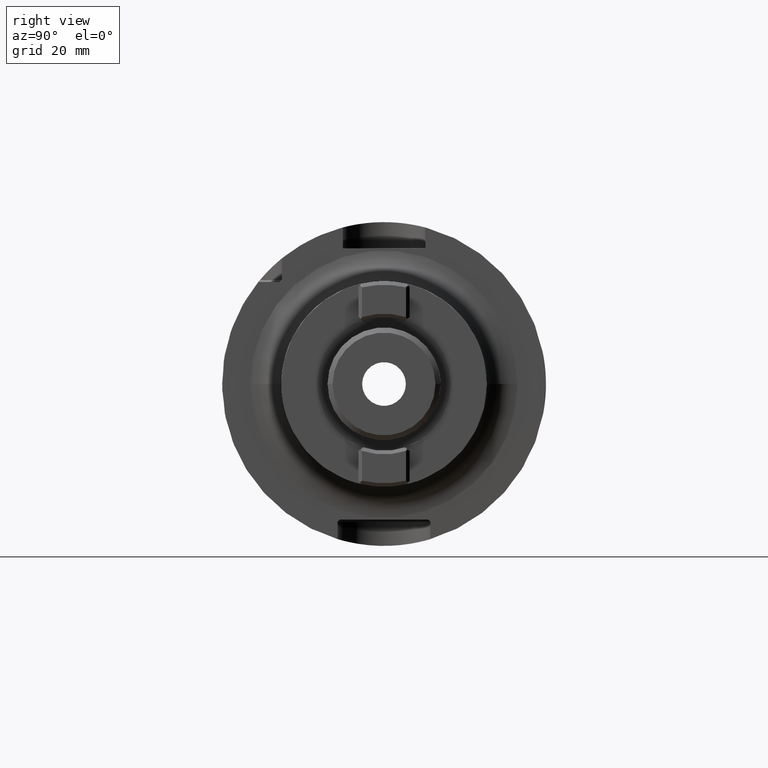
[diagram: clean part render]
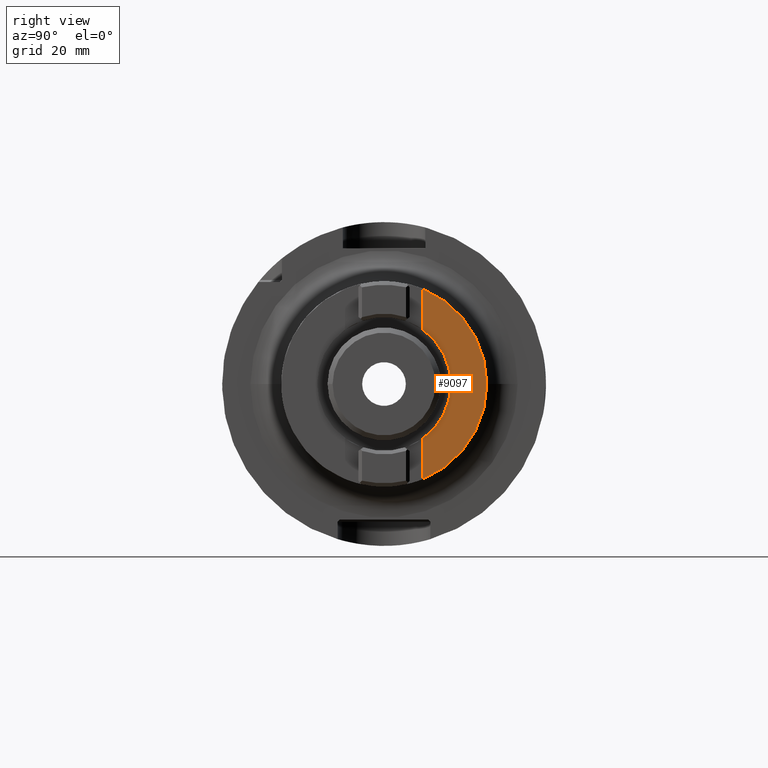
[diagram: same view with one face highlighted and labeled with its STEP entity id]
A machine part, right view. The second image highlights one B-rep face of the part: STEP entity #9097.
In plain terms, the highlighted planar face has unit normal (-1, 0, 0).
Its self-contained STEP definition (entity closure, byte-faithful):
#7212=CARTESIAN_POINT('',(0.E0,1.2E1,0.E0));
#7213=DIRECTION('',(0.E0,1.E0,0.E0));
#7214=DIRECTION('',(1.E0,0.E0,0.E0));
#7215=AXIS2_PLACEMENT_3D('',#7212,#7213,#7214);
#7483=CARTESIAN_POINT('',(0.E0,1.2E1,0.E0));
#7484=DIRECTION('',(0.E0,1.E0,0.E0));
#7485=DIRECTION('',(3.78875E-1,0.E0,9.254478561081E-1));
#7486=AXIS2_PLACEMENT_3D('',#7483,#7484,#7485);
#7741=CARTESIAN_POINT('',(0.E0,1.2E1,0.E0));
#7742=DIRECTION('',(0.E0,1.E0,0.E0));
#7743=DIRECTION('',(5.828846153846E-1,0.E0,8.125549366953E-1));
#7744=AXIS2_PLACEMENT_3D('',#7741,#7742,#7743);
#7746=CARTESIAN_POINT('',(0.E0,1.2E1,0.E0));
#7747=DIRECTION('',(0.E0,1.E0,0.E0));
#7748=DIRECTION('',(1.E0,0.E0,0.E0));
#7749=AXIS2_PLACEMENT_3D('',#7746,#7747,#7748);
#7751=DIRECTION('',(0.E0,0.E0,1.E0));
#7752=VECTOR('',#7751,7.945742945122E0);
#7753=CARTESIAN_POINT('',(7.5775E0,1.2E1,-1.850895712216E1));
#7754=LINE('',#7753,#7752);
#7755=DIRECTION('',(0.E0,0.E0,1.E0));
#7756=VECTOR('',#7755,7.945742945122E0);
#7757=CARTESIAN_POINT('',(7.5775E0,1.2E1,1.056321417704E1));
#7758=LINE('',#7757,#7756);
#8116=CARTESIAN_POINT('',(2.E1,1.2E1,0.E0));
#8117=CARTESIAN_POINT('',(7.5775E0,1.2E1,-1.850895712216E1));
#8118=VERTEX_POINT('',#8116);
#8119=VERTEX_POINT('',#8117);
#8124=CARTESIAN_POINT('',(7.5775E0,1.2E1,1.850895712216E1));
#8125=VERTEX_POINT('',#8124);
#8136=CARTESIAN_POINT('',(7.5775E0,1.2E1,1.056321417704E1));
#8137=CARTESIAN_POINT('',(1.3E1,1.2E1,0.E0));
#8138=VERTEX_POINT('',#8136);
#8139=VERTEX_POINT('',#8137);
#8140=CARTESIAN_POINT('',(7.5775E0,1.2E1,-1.056321417704E1));
#8141=VERTEX_POINT('',#8140);
#9084=CARTESIAN_POINT('',(7.5775E0,1.2E1,-2.4E1));
#9085=DIRECTION('',(0.E0,-1.E0,0.E0));
#9086=DIRECTION('',(1.E0,0.E0,0.E0));
#9087=AXIS2_PLACEMENT_3D('',#9084,#9085,#9086);
#9088=PLANE('',#9087);
#9089=ORIENTED_EDGE('',*,*,#8807,.T.);
#9090=ORIENTED_EDGE('',*,*,#9029,.T.);
#9091=ORIENTED_EDGE('',*,*,#9079,.F.);
#9092=ORIENTED_EDGE('',*,*,#8474,.F.);
#9093=ORIENTED_EDGE('',*,*,#8749,.F.);
#9094=ORIENTED_EDGE('',*,*,#9064,.F.);
#9095=EDGE_LOOP('',(#9089,#9090,#9091,#9092,#9093,#9094));
#9096=FACE_OUTER_BOUND('',#9095,.F.);
#9097=ADVANCED_FACE('',(#9096),#9088,.F.);
#7216=CIRCLE('',#7215,2.E1);
#7487=CIRCLE('',#7486,2.E1);
#7745=CIRCLE('',#7744,1.3E1);
#7750=CIRCLE('',#7749,1.3E1);
#8474=EDGE_CURVE('',#8118,#8119,#7216,.T.);
#8749=EDGE_CURVE('',#8125,#8118,#7487,.T.);
#8807=EDGE_CURVE('',#8138,#8139,#7745,.T.);
#9029=EDGE_CURVE('',#8139,#8141,#7750,.T.);
#9064=EDGE_CURVE('',#8138,#8125,#7758,.T.);
#9079=EDGE_CURVE('',#8119,#8141,#7754,.T.);